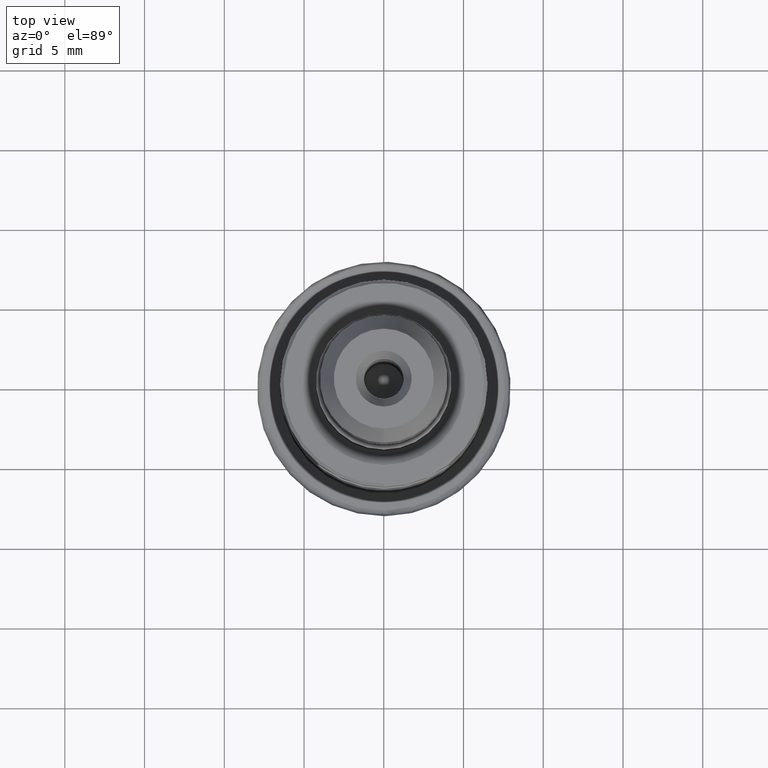
[diagram: clean part render]
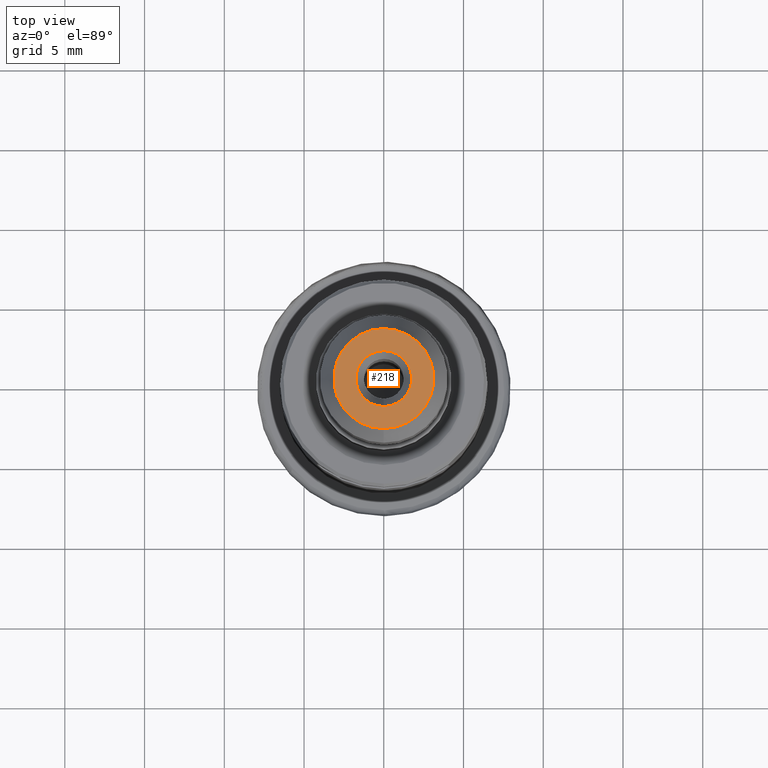
[diagram: same view with one face highlighted and labeled with its STEP entity id]
A machine part, top view. The second image highlights one B-rep face of the part: STEP entity #218.
In plain terms, the highlighted planar face has unit normal (-0, -0, -1).
Its self-contained STEP definition (entity closure, byte-faithful):
#218=ADVANCED_FACE('',(#275,#276),#266,.F.);
#266=PLANE('',#762);
#275=FACE_BOUND('',#351,.T.);
#276=FACE_BOUND('',#352,.T.);
#351=EDGE_LOOP('',(#437));
#352=EDGE_LOOP('',(#438));
#437=ORIENTED_EDGE('',*,*,#613,.T.);
#438=ORIENTED_EDGE('',*,*,#614,.T.);
#559=VERTEX_POINT('',#1227);
#560=VERTEX_POINT('',#1229);
#613=EDGE_CURVE('',#559,#559,#674,.T.);
#614=EDGE_CURVE('',#560,#560,#675,.T.);
#674=CIRCLE('',#760,1.75);
#675=CIRCLE('',#761,3.13397459621556);
#760=AXIS2_PLACEMENT_3D('',#1226,#830,#831);
#761=AXIS2_PLACEMENT_3D('',#1228,#832,#833);
#762=AXIS2_PLACEMENT_3D('',#1230,#834,#835);
#830=DIRECTION('',(-1.17145536458252E-15,-1.17145536458252E-15,-1.));
#831=DIRECTION('',(0.,-1.,0.));
#832=DIRECTION('',(1.17145536458252E-15,1.17145536458252E-15,1.));
#833=DIRECTION('',(0.,-1.,2.21408747610345E-15));
#834=DIRECTION('',(-1.17145536458252E-15,-1.17145536458252E-15,-1.));
#835=DIRECTION('',(0.,-1.,1.17267306976032E-15));
#1226=CARTESIAN_POINT('',(4.68429856635614E-14,4.68429856635614E-14,39.987));
#1227=CARTESIAN_POINT('',(4.68429856635614E-14,-1.74999999999995,39.987));
#1228=CARTESIAN_POINT('',(4.68429856635614E-14,4.68429856635614E-14,39.987));
#1229=CARTESIAN_POINT('',(4.68429856635614E-14,-3.13397459621552,39.987));
#1230=CARTESIAN_POINT('',(4.00000000000005,4.68429856635614E-14,39.987));